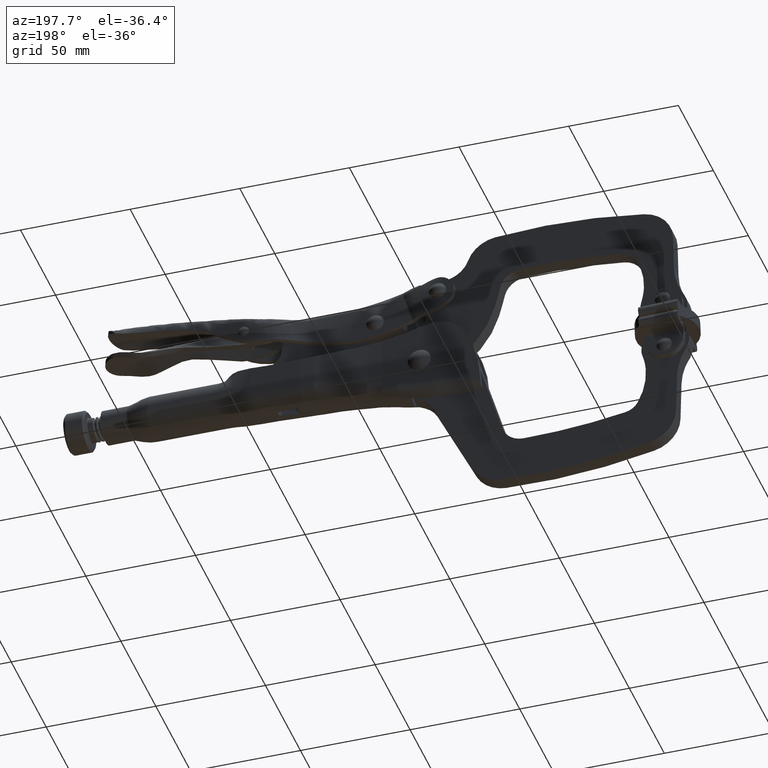
[diagram: clean part render]
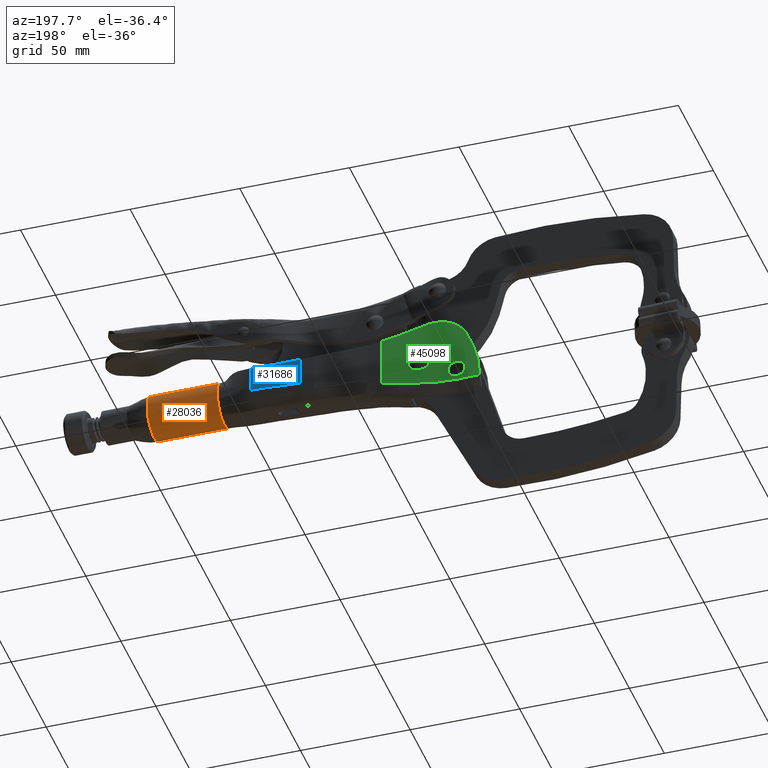
[diagram: same view with three faces highlighted in distinct colors, each labeled with its STEP entity id]
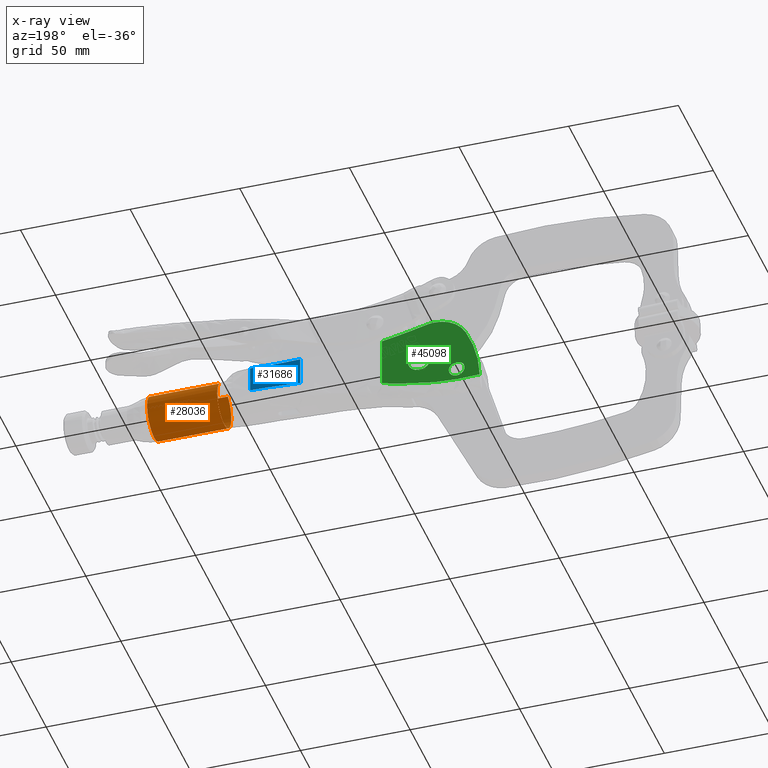
[diagram: x-ray of the same camera — body ghosted, the three highlighted faces saturated]
A machine part, auxiliary view with three faces highlighted in distinct colors.
The next image is the same camera in x-ray (body ghosted, the three faces saturated) — at least one of them is partly hidden behind the body in this view.
Their STEP definitions:

[orange] entity #28036 — the highlighted cylindrical surface (edge-blend (fillet) strip) has radius 10 mm, axis along (-1, -0, -0).
#592 = VERTEX_POINT ( 'NONE', #8088 ) ;
#611 = CARTESIAN_POINT ( 'NONE',  ( 36.02204641913095900, 9.525596559863508600, 8.889288329555022000 ) ) ;
#751 = CARTESIAN_POINT ( 'NONE',  ( 68.02204641913095900, 10.94599640020213400, 7.236930861635720200 ) ) ;
#968 = CARTESIAN_POINT ( 'NONE',  ( 68.02204641913094500, 3.737656320296363500, -8.453879710202306400 ) ) ;
#1102 = CARTESIAN_POINT ( 'NONE',  ( 36.02204641913094500, 12.30682985225393500, -1.057782821088253200 ) ) ;
#1180 = CARTESIAN_POINT ( 'NONE',  ( 68.02204641913095900, -6.214314342678192400, 6.297034963005099700 ) ) ;
#1284 = ORIENTED_EDGE ( 'NONE', *, *, #54007, .T. ) ;
#3744 = B_SPLINE_CURVE_WITH_KNOTS ( 'NONE', 3,
 ( #17872, #6134, #18301, #18338 ),
 .UNSPECIFIED., .F., .F.,
 ( 4, 4 ),
 ( 0.0000000000000000000, 1.000000000000000000 ),
 .UNSPECIFIED. ) ;
#5418 = VERTEX_POINT ( 'NONE', #8054 ) ;
#5569 = CARTESIAN_POINT ( 'NONE',  ( 36.02204641913094500, 7.754735816134156900, 10.14612028979769500 ) ) ;
#5677 = ORIENTED_EDGE ( 'NONE', *, *, #63888, .T. ) ;
#5719 = CARTESIAN_POINT ( 'NONE',  ( 68.02204641913095900, 12.33100504852976100, 4.283271366708026700 ) ) ;
#5854 = CARTESIAN_POINT ( 'NONE',  ( 36.02204641913095900, 4.802618696632373000, -8.219838932011827000 ) ) ;
#5935 = CARTESIAN_POINT ( 'NONE',  ( 68.02204641913095900, 0.4802765938230168500, -8.275468148135166400 ) ) ;
#6134 = CARTESIAN_POINT ( 'NONE',  ( 36.02204641913095200, 1.991841423855072800, -8.530690930397087300 ) ) ;
#6143 = CARTESIAN_POINT ( 'NONE',  ( 68.02204641913097300, -4.227608734443453600, 8.884573212795315200 ) ) ;
#6408 = EDGE_CURVE ( 'NONE', #13045, #59570, #3744, .T. ) ;
#7144 = CARTESIAN_POINT ( 'NONE',  ( 36.02204641913094500, 12.30682985225393500, -1.057782821088253200 ) ) ;
#8054 = CARTESIAN_POINT ( 'NONE',  ( 36.02204641913094500, 7.754735816134156900, 10.14612028979769500 ) ) ;
#8088 = CARTESIAN_POINT ( 'NONE',  ( 68.02204641913095900, -2.451144841604288700, 10.14612028979769100 ) ) ;
#9058 = ORIENTED_EDGE ( 'NONE', *, *, #57327, .T. ) ;
#9282 = B_SPLINE_CURVE_WITH_KNOTS ( 'NONE', 3,
 ( #54959, #25462, #30423, #751, #35380, #5719, #40351, #10776, #45285, #15769, #50239, #20690, #55166, #25670, #60111, #30635, #968, #35592, #5935, #40570, #10989, #45499, #15990, #50443, #20898, #55377, #25893, #60320, #30848, #1180, #35809, #6143, #40788, #11201 ),
 .UNSPECIFIED., .F., .F.,
 ( 4, 2, 2, 2, 2, 2, 2, 2, 2, 2, 2, 2, 2, 2, 2, 2, 4 ),
 ( 0.0000000000000000000, 0.06250000000000001400, 0.1250000000000000300, 0.1875000000000000600, 0.2500000000000000600, 0.3125000000000000600, 0.3750000000000001100, 0.4375000000000001100, 0.5000000000000000000, 0.5625000000000000000, 0.6250000000000000000, 0.6875000000000000000, 0.7500000000000000000, 0.8125000000000001100, 0.8750000000000001100, 0.9375000000000001100, 1.000000000000000000 ),
 .UNSPECIFIED. ) ;
#9591 = VERTEX_POINT ( 'NONE', #47704 ) ;
#9810 = EDGE_CURVE ( 'NONE', #48738, #13045, #54995, .T. ) ;
#10776 = CARTESIAN_POINT ( 'NONE',  ( 68.02204641913094500, 12.69792226456056900, 1.041709224083114100 ) ) ;
#10989 = CARTESIAN_POINT ( 'NONE',  ( 68.02204641913095900, -2.548695557993486000, -7.063989270300751900 ) ) ;
#11201 = CARTESIAN_POINT ( 'NONE',  ( 68.02204641913095900, -2.451144841604288700, 10.14612028979769100 ) ) ;
#13045 = VERTEX_POINT ( 'NONE', #23375 ) ;
#13158 = EDGE_CURVE ( 'NONE', #41102, #48738, #49104, .T. ) ;
#13589 = B_SPLINE_CURVE_WITH_KNOTS ( 'NONE', 3,
 ( #15413, #30066, #20340, #54815, #25318, #59759, #30281, #611, #35234, #5569 ),
 .UNSPECIFIED., .F., .F.,
 ( 4, 2, 2, 2, 4 ),
 ( 0.0000000000000000000, 0.2500000000000000000, 0.5000000000000000000, 0.7500000000000000000, 1.000000000000000000 ),
 .UNSPECIFIED. ) ;
#15413 = CARTESIAN_POINT ( 'NONE',  ( 36.02204641913094500, 12.30682985225393500, -1.057782821088253200 ) ) ;
#15769 = CARTESIAN_POINT ( 'NONE',  ( 68.02204641913095900, 12.00815447599523500, -2.146797286146481500 ) ) ;
#15910 = CARTESIAN_POINT ( 'NONE',  ( 36.02204641913095900, 6.550841412063022100, -7.707171527829632200 ) ) ;
#15990 = CARTESIAN_POINT ( 'NONE',  ( 68.02204641913095900, -5.030662776875975500, -4.946870451643777100 ) ) ;
#17872 = CARTESIAN_POINT ( 'NONE',  ( 36.02204641913094500, 0.6150256375043062800, -8.244261141949797500 ) ) ;
#17962 = VECTOR ( 'NONE', #37184, 1000.000000000000000 ) ;
#18301 = CARTESIAN_POINT ( 'NONE',  ( 36.02204641913095200, 3.429237391809619500, -8.522307979714511800 ) ) ;
#18338 = CARTESIAN_POINT ( 'NONE',  ( 36.02204641913095900, 4.802618696632373000, -8.219838932011827000 ) ) ;
#19487 = ORIENTED_EDGE ( 'NONE', *, *, #9810, .T. ) ;
#19737 = EDGE_CURVE ( 'NONE', #592, #41102, #58772, .T. ) ;
#19777 = CARTESIAN_POINT ( 'NONE',  ( 68.02204641913095900, 2.651795487264938500, 1.546120289797690900 ) ) ;
#20340 = CARTESIAN_POINT ( 'NONE',  ( 36.02204641913095900, 12.69928858485659400, 1.077995840939492700 ) ) ;
#20690 = CARTESIAN_POINT ( 'NONE',  ( 68.02204641913097300, 10.33425375140586200, -4.946870451643763800 ) ) ;
#20691 = CARTESIAN_POINT ( 'NONE',  ( 68.02204641913095900, 7.754735816134157700, 10.14612028979769500 ) ) ;
#20816 = CARTESIAN_POINT ( 'NONE',  ( 36.02204641913095200, 8.898569003801965100, -6.315418313996412200 ) ) ;
#20898 = CARTESIAN_POINT ( 'NONE',  ( 68.02204641913095900, -6.704563501465361100, -2.146797286146484100 ) ) ;
#20919 = CARTESIAN_POINT ( 'NONE',  ( 36.02204641913095900, -7.204462249789418000, -0.1433125797641889600 ) ) ;
#20995 = CARTESIAN_POINT ( 'NONE',  ( 36.02204641913095200, -7.374113285068149000, 0.8464422422186872500 ) ) ;
#21002 = CARTESIAN_POINT ( 'NONE',  ( 36.02204641913095900, -7.393538635063939600, 1.861807559393188600 ) ) ;
#21073 = CARTESIAN_POINT ( 'NONE',  ( 36.02204641913095200, -7.130198680051791800, 3.852846583052061700 ) ) ;
#21134 = CARTESIAN_POINT ( 'NONE',  ( 36.02204641913095900, -6.847469369484385600, 4.828248145737610700 ) ) ;
#21213 = CARTESIAN_POINT ( 'NONE',  ( 36.02204641913095200, -6.005206771027667800, 6.651481000004783300 ) ) ;
#21277 = CARTESIAN_POINT ( 'NONE',  ( 36.02204641913095200, -5.445788607222017000, 7.499063084258375000 ) ) ;
#21294 = CARTESIAN_POINT ( 'NONE',  ( 36.02204641913095900, -4.100467084601434400, 8.990268746268858600 ) ) ;
#21715 = CARTESIAN_POINT ( 'NONE',  ( 36.02204641913095200, -3.314747610133037100, 9.633688499606007500 ) ) ;
#22446 = CARTESIAN_POINT ( 'NONE',  ( 36.02204641913094500, -2.451144841604288700, 10.14612028979769100 ) ) ;
#22589 = CARTESIAN_POINT ( 'NONE',  ( 36.02204641913095900, 4.802618696632373000, -8.219838932011827000 ) ) ;
#22694 = CARTESIAN_POINT ( 'NONE',  ( 36.02204641913095900, -7.204462249789418000, -0.1433125797641889600 ) ) ;
#23375 = CARTESIAN_POINT ( 'NONE',  ( 36.02204641913094500, 0.6150256375043062800, -8.244261141949797500 ) ) ;
#24762 = DIRECTION ( 'NONE',  ( -1.000000000000000000, -0.0000000000000000000, -0.0000000000000000000 ) ) ;
#25318 = CARTESIAN_POINT ( 'NONE',  ( 36.02204641913095200, 12.32368655024228800, 4.307602013740404500 ) ) ;
#25462 = CARTESIAN_POINT ( 'NONE',  ( 68.02204641913095900, 8.688576132541177400, 9.592011986156141000 ) ) ;
#25670 = CARTESIAN_POINT ( 'NONE',  ( 68.02204641913097300, 7.852286532523368800, -7.063989270300747400 ) ) ;
#25808 = CARTESIAN_POINT ( 'NONE',  ( 36.02204641913095200, 10.78479864219318300, -4.342871836855263900 ) ) ;
#25893 = CARTESIAN_POINT ( 'NONE',  ( 68.02204641913095900, -7.394331290030694800, 1.041709224083102500 ) ) ;
#26346 = AXIS2_PLACEMENT_3D ( 'NONE', #19777, #24762, #49330 ) ;
#28036 = ADVANCED_FACE ( 'NONE', ( #45262 ), #43748, .T. ) ;
#28348 = ORIENTED_EDGE ( 'NONE', *, *, #29681, .T. ) ;
#29681 = EDGE_CURVE ( 'NONE', #9591, #592, #9282, .T. ) ;
#30066 = CARTESIAN_POINT ( 'NONE',  ( 36.02204641913095200, 12.58863642231265900, -0.01286985684552476700 ) ) ;
#30281 = CARTESIAN_POINT ( 'NONE',  ( 36.02204641913095200, 10.93746401376941800, 7.248659646493433900 ) ) ;
#30423 = CARTESIAN_POINT ( 'NONE',  ( 68.02204641913095900, 9.531199708973320000, 8.884573212795325900 ) ) ;
#30635 = CARTESIAN_POINT ( 'NONE',  ( 68.02204641913094500, 4.823314380706870400, -8.275468148135162800 ) ) ;
#30765 = CARTESIAN_POINT ( 'NONE',  ( 36.02204641913095200, 12.07017981046879700, -1.935259512275199000 ) ) ;
#30848 = CARTESIAN_POINT ( 'NONE',  ( 68.02204641913095900, -7.027414073999880300, 4.283271366708020400 ) ) ;
#35234 = CARTESIAN_POINT ( 'NONE',  ( 36.02204641913095200, 8.685468028240345400, 9.593856226944868800 ) ) ;
#35380 = CARTESIAN_POINT ( 'NONE',  ( 68.02204641913095900, 11.51790531720806300, 6.297034963005105900 ) ) ;
#35505 = CARTESIAN_POINT ( 'NONE',  ( 36.02204641913095200, 5.690176550936197200, -8.024366066588653400 ) ) ;
#35592 = CARTESIAN_POINT ( 'NONE',  ( 68.02204641913095900, 1.565934654233525300, -8.453879710202310000 ) ) ;
#35742 = VERTEX_POINT ( 'NONE', #7144 ) ;
#35809 = CARTESIAN_POINT ( 'NONE',  ( 68.02204641913095900, -5.642405425672263800, 7.236930861635710400 ) ) ;
#36654 = CARTESIAN_POINT ( 'NONE',  ( 36.02204641913094500, 0.6150256375043062800, -8.244261141949797500 ) ) ;
#36869 = CARTESIAN_POINT ( 'NONE',  ( 36.02204641913095200, -0.3606892465287562200, -8.041275520642242800 ) ) ;
#36938 = CARTESIAN_POINT ( 'NONE',  ( 36.02204641913095900, -1.305706223804418600, -7.691379529107012800 ) ) ;
#37001 = CARTESIAN_POINT ( 'NONE',  ( 36.02204641913095200, -3.050986876867980400, -6.728630220321378800 ) ) ;
#37147 = CARTESIAN_POINT ( 'NONE',  ( 36.02204641913095200, -3.851019110122564400, -6.115904573734483500 ) ) ;
#37184 = DIRECTION ( 'NONE',  ( -1.000000000000000000, -0.0000000000000000000, -0.0000000000000000000 ) ) ;
#37218 = CARTESIAN_POINT ( 'NONE',  ( 36.02204641913094500, -5.235298629023207100, -4.681798230718947600 ) ) ;
#37281 = CARTESIAN_POINT ( 'NONE',  ( 36.02204641913095200, -5.819362344675461400, -3.860607711843977900 ) ) ;
#37355 = CARTESIAN_POINT ( 'NONE',  ( 36.02204641913095200, -6.719818948166832200, -2.082387057719756700 ) ) ;
#40351 = CARTESIAN_POINT ( 'NONE',  ( 68.02204641913095900, 12.57204402537374200, 3.209779717343416800 ) ) ;
#40570 = CARTESIAN_POINT ( 'NONE',  ( 68.02204641913094500, -1.577230620762287500, -7.580458035420131000 ) ) ;
#40788 = CARTESIAN_POINT ( 'NONE',  ( 68.02204641913094500, -3.384985158011307900, 9.592011986156133900 ) ) ;
#41102 = VERTEX_POINT ( 'NONE', #60359 ) ;
#42477 = LINE ( 'NONE', #20691, #57085 ) ;
#43242 = CARTESIAN_POINT ( 'NONE',  ( 36.02204641913095900, -7.204462249789418000, -0.1433125797641889600 ) ) ;
#43748 = CYLINDRICAL_SURFACE ( 'NONE', #26346, 9.999999999999998200 ) ;
#45262 = FACE_OUTER_BOUND ( 'NONE', #45803, .T. ) ;
#45285 = CARTESIAN_POINT ( 'NONE',  ( 68.02204641913095900, 12.58273802052055100, -0.05246475638730419000 ) ) ;
#45499 = CARTESIAN_POINT ( 'NONE',  ( 68.02204641913094500, -4.275572873765447900, -5.747072518520681700 ) ) ;
#45803 = EDGE_LOOP ( 'NONE', ( #28348, #62198, #50132, #19487, #49659, #5677, #9058, #1284 ) ) ;
#46693 = CARTESIAN_POINT ( 'NONE',  ( 36.02204641913095200, -7.036092426009010300, -1.125592733193708300 ) ) ;
#46885 = CARTESIAN_POINT ( 'NONE',  ( 68.02204641913095900, -2.451144841604290500, 10.14612028979769000 ) ) ;
#47704 = CARTESIAN_POINT ( 'NONE',  ( 68.02204641913095900, 7.754735816134156900, 10.14612028979769500 ) ) ;
#48738 = VERTEX_POINT ( 'NONE', #22694 ) ;
#49104 = B_SPLINE_CURVE_WITH_KNOTS ( 'NONE', 3,
 ( #22446, #21715, #21294, #21277, #21213, #21134, #21073, #21002, #20995, #20919 ),
 .UNSPECIFIED., .F., .F.,
 ( 4, 2, 2, 2, 4 ),
 ( 0.0000000000000000000, 0.2500000000000000000, 0.5000000000000000000, 0.7500000000000000000, 1.000000000000000000 ),
 .UNSPECIFIED. ) ;
#49330 = DIRECTION ( 'NONE',  ( 0.0000000000000000000, 0.0000000000000000000, 1.000000000000000000 ) ) ;
#49659 = ORIENTED_EDGE ( 'NONE', *, *, #6408, .T. ) ;
#50132 = ORIENTED_EDGE ( 'NONE', *, *, #13158, .T. ) ;
#50239 = CARTESIAN_POINT ( 'NONE',  ( 68.02204641913095900, 11.54886247269547400, -3.146564741767254000 ) ) ;
#50240 = DIRECTION ( 'NONE',  ( 1.000000000000000000, 0.0000000000000000000, 0.0000000000000000000 ) ) ;
#50363 = CARTESIAN_POINT ( 'NONE',  ( 36.02204641913095200, 8.155111254216603100, -6.852658440176949000 ) ) ;
#50443 = CARTESIAN_POINT ( 'NONE',  ( 68.02204641913094500, -6.245271498165587700, -3.146564741767267700 ) ) ;
#54007 = EDGE_CURVE ( 'NONE', #5418, #9591, #42477, .T. ) ;
#54461 = B_SPLINE_CURVE_WITH_KNOTS ( 'NONE', 3,
 ( #5854, #35505, #15910, #50363, #20816, #55292, #25808, #60241, #30765, #1102 ),
 .UNSPECIFIED., .F., .F.,
 ( 4, 2, 2, 2, 4 ),
 ( 0.0000000000000000000, 0.2500000000000000000, 0.5000000000000000000, 0.7500000000000000000, 1.000000000000000000 ),
 .UNSPECIFIED. ) ;
#54815 = CARTESIAN_POINT ( 'NONE',  ( 36.02204641913095200, 12.56680144201718400, 3.238430829562247000 ) ) ;
#54959 = CARTESIAN_POINT ( 'NONE',  ( 68.02204641913095900, 7.754735816134156900, 10.14612028979769500 ) ) ;
#54995 = B_SPLINE_CURVE_WITH_KNOTS ( 'NONE', 3,
 ( #43242, #46693, #37355, #37281, #37218, #37147, #37001, #36938, #36869, #36654 ),
 .UNSPECIFIED., .F., .F.,
 ( 4, 2, 2, 2, 4 ),
 ( 0.0000000000000000000, 0.2500000000000000600, 0.5000000000000001100, 0.7500000000000000000, 1.000000000000000000 ),
 .UNSPECIFIED. ) ;
#55166 = CARTESIAN_POINT ( 'NONE',  ( 68.02204641913094500, 9.579163848295332100, -5.747072518520674600 ) ) ;
#55292 = CARTESIAN_POINT ( 'NONE',  ( 36.02204641913095900, 10.21347303527550000, -5.060467425942281500 ) ) ;
#55377 = CARTESIAN_POINT ( 'NONE',  ( 68.02204641913095900, -7.279147045990674400, -0.05246475638730400300 ) ) ;
#57085 = VECTOR ( 'NONE', #50240, 1000.000000000000000 ) ;
#57327 = EDGE_CURVE ( 'NONE', #35742, #5418, #13589, .T. ) ;
#58772 = LINE ( 'NONE', #46885, #17962 ) ;
#59570 = VERTEX_POINT ( 'NONE', #22589 ) ;
#59759 = CARTESIAN_POINT ( 'NONE',  ( 36.02204641913095900, 11.50894276907708000, 6.312901181978340900 ) ) ;
#60111 = CARTESIAN_POINT ( 'NONE',  ( 68.02204641913095900, 6.880821595292174700, -7.580458035420126500 ) ) ;
#60241 = CARTESIAN_POINT ( 'NONE',  ( 36.02204641913095900, 11.71319463143829200, -2.780196172948386400 ) ) ;
#60320 = CARTESIAN_POINT ( 'NONE',  ( 68.02204641913095900, -7.268453050843867800, 3.209779717343406600 ) ) ;
#60359 = CARTESIAN_POINT ( 'NONE',  ( 36.02204641913094500, -2.451144841604288700, 10.14612028979769100 ) ) ;
#62198 = ORIENTED_EDGE ( 'NONE', *, *, #19737, .T. ) ;
#63888 = EDGE_CURVE ( 'NONE', #59570, #35742, #54461, .T. ) ;

[blue] entity #31686 — the highlighted planar face has unit normal (0, 1, 0).
#1273 = ORIENTED_EDGE ( 'NONE', *, *, #58903, .T. ) ;
#1416 = EDGE_CURVE ( 'NONE', #6296, #50430, #12147, .T. ) ;
#2104 = DIRECTION ( 'NONE',  ( 0.0000000000000000000, 1.000000000000000000, -0.0000000000000000000 ) ) ;
#2502 = CARTESIAN_POINT ( 'NONE',  ( 12.16098166333939400, 12.65179548726494100, -0.6986608687994649800 ) ) ;
#2720 = CARTESIAN_POINT ( 'NONE',  ( 9.558692299340281200, 12.65179548726493800, -0.7881498150597348000 ) ) ;
#2728 = VECTOR ( 'NONE', #45865, 1000.000000000000000 ) ;
#2935 = CARTESIAN_POINT ( 'NONE',  ( 5.710943555642130900, 12.65179548726493900, -1.031207597890486200 ) ) ;
#3145 = CARTESIAN_POINT ( 'NONE',  ( 3.827712906759640300, 12.65179548726493800, -1.181869059529792300 ) ) ;
#3330 = CARTESIAN_POINT ( 'NONE',  ( 16.70536564177730200, 12.65179548726493800, -0.5908578943507718500 ) ) ;
#3355 = CARTESIAN_POINT ( 'NONE',  ( 0.4806908400562572800, 12.65179548726494100, -1.445599380553157300 ) ) ;
#4703 = EDGE_CURVE ( 'NONE', #14359, #6296, #15950, .T. ) ;
#5061 = CARTESIAN_POINT ( 'NONE',  ( -1.827773344956769200, 12.65179548726493200, 11.20412815432691300 ) ) ;
#6296 = VERTEX_POINT ( 'NONE', #5061 ) ;
#7262 = CARTESIAN_POINT ( 'NONE',  ( 13.05046508063226300, 12.65179548726493900, -0.6894647118337302600 ) ) ;
#7478 = CARTESIAN_POINT ( 'NONE',  ( 11.65296447755173000, 12.65179548726493900, -0.7098824026195819100 ) ) ;
#7563 = CARTESIAN_POINT ( 'NONE',  ( -1.827773344956838700, 12.65179548726493200, -1.604901785083591600 ) ) ;
#7704 = CARTESIAN_POINT ( 'NONE',  ( 9.494594664909056900, 12.65179548726494100, -0.7912583931415214700 ) ) ;
#7914 = CARTESIAN_POINT ( 'NONE',  ( 5.705891522807924300, 12.65179548726494300, -1.031595544662646800 ) ) ;
#8124 = CARTESIAN_POINT ( 'NONE',  ( 20.27533879904969900, 12.65179548726493800, -0.4584790982659752200 ) ) ;
#8151 = CARTESIAN_POINT ( 'NONE',  ( 3.549091295920590500, 12.65179548726494100, -1.204190942451176700 ) ) ;
#8346 = CARTESIAN_POINT ( 'NONE',  ( 15.61945805121534600, 12.65179548726493800, -0.6364919234364516700 ) ) ;
#8370 = CARTESIAN_POINT ( 'NONE',  ( 0.1689244398131592200, 12.65179548726494300, -1.468814780723828500 ) ) ;
#12147 = CIRCLE ( 'NONE', #18773, 265.0000000000001100 ) ;
#12508 = CARTESIAN_POINT ( 'NONE',  ( 11.43655065555795300, 12.65179548726493800, -0.7157130397910533800 ) ) ;
#12725 = CARTESIAN_POINT ( 'NONE',  ( 7.954507433703801300, 12.65179548726493800, -0.8735112674955665100 ) ) ;
#12923 = CARTESIAN_POINT ( 'NONE',  ( 20.73411071659364100, 12.65179548726493900, -0.4538870702949517900 ) ) ;
#12947 = CARTESIAN_POINT ( 'NONE',  ( 5.435686344466704500, 12.65179548726493900, -1.053103152965779300 ) ) ;
#13139 = CARTESIAN_POINT ( 'NONE',  ( 19.39020357940005800, 12.65179548726493800, -0.4805444224509650700 ) ) ;
#13166 = CARTESIAN_POINT ( 'NONE',  ( 2.541662961164938400, 12.65179548726493600, -1.284416164992107300 ) ) ;
#13358 = CARTESIAN_POINT ( 'NONE',  ( 15.29179396307082300, 12.65179548726494100, -0.6486368161322604300 ) ) ;
#13381 = CARTESIAN_POINT ( 'NONE',  ( -0.3688085455565275900, 12.65179548726494100, -1.507974998139297800 ) ) ;
#14359 = VERTEX_POINT ( 'NONE', #7563 ) ;
#15950 = LINE ( 'NONE', #34527, #2728 ) ;
#16055 = DIRECTION ( 'NONE',  ( -0.0000000000000000000, -1.000000000000000000, -0.0000000000000000000 ) ) ;
#16244 = ORIENTED_EDGE ( 'NONE', *, *, #1416, .T. ) ;
#17007 = B_SPLINE_CURVE_WITH_KNOTS ( 'NONE', 3,
 ( #62214, #12923, #8124, #42689, #13139, #47662, #18126, #52568, #23056, #57521, #28022, #62424, #32981, #3330, #37951, #8346, #42910, #13358, #47866, #18344, #52782, #23271, #57735, #28240, #62637, #33187 ),
 .UNSPECIFIED., .F., .F.,
 ( 4, 1, 1, 1, 1, 1, 1, 2, 2, 2, 1, 1, 1, 1, 1, 1, 2, 2, 4 ),
 ( 0.0000000000000000000, 0.1249999999999728600, 0.1874999999999599500, 0.2187499999999534800, 0.2343749999999502600, 0.2421874999999480400, 0.2460937499999475400, 0.2480468749999472600, 0.2499999999999470400, 0.4999999999999367200, 0.6249999999999315000, 0.6874999999999296100, 0.7187499999999295000, 0.7343749999999299400, 0.7421874999999300600, 0.7460937499999301700, 0.7480468749999307200, 0.7499999999999312800, 1.000000000000000000 ),
 .UNSPECIFIED. ) ;
#17310 = CARTESIAN_POINT ( 'NONE',  ( 12.78141295122861900, 12.65179548726494300, -0.6909866303573890500 ) ) ;
#17338 = CARTESIAN_POINT ( 'NONE',  ( 7.322046419130972000, 12.65179548726493900, 276.0461202897976700 ) ) ;
#17519 = CARTESIAN_POINT ( 'NONE',  ( 11.38423291674852500, 12.65179548726493900, -0.7171925449217017000 ) ) ;
#17690 = DIRECTION ( 'NONE',  ( 1.598564048428438200E-014, 0.0000000000000000000, 1.000000000000000000 ) ) ;
#17731 = CARTESIAN_POINT ( 'NONE',  ( 6.277270371393928600, 12.65179548726493800, -0.9886241508016465600 ) ) ;
#17939 = CARTESIAN_POINT ( 'NONE',  ( 4.322595422337956400, 12.65179548726494100, -1.142224942201840000 ) ) ;
#18126 = CARTESIAN_POINT ( 'NONE',  ( 19.15789954717324400, 12.65179548726494100, -0.4879396742877077400 ) ) ;
#18154 = CARTESIAN_POINT ( 'NONE',  ( 2.093733948020918900, 12.65179548726494500, -1.319936263372828400 ) ) ;
#18344 = CARTESIAN_POINT ( 'NONE',  ( 15.21816809654406400, 12.65179548726493800, -0.6512031674830475200 ) ) ;
#18368 = CARTESIAN_POINT ( 'NONE',  ( -1.827773344956838700, 12.65179548726493200, -1.604901785083591600 ) ) ;
#18507 = VERTEX_POINT ( 'NONE', #54658 ) ;
#18773 = AXIS2_PLACEMENT_3D ( 'NONE', #17338, #16055, #17690 ) ;
#22232 = CARTESIAN_POINT ( 'NONE',  ( 12.41149067797609200, 12.65179548726494300, -0.6948389204514229300 ) ) ;
#22442 = CARTESIAN_POINT ( 'NONE',  ( 11.06617250329336800, 12.65179548726493800, -0.7263315872228280900 ) ) ;
#22652 = CARTESIAN_POINT ( 'NONE',  ( 5.849258216028625100, 12.65179548726494100, -1.020641242473195000 ) ) ;
#22868 = CARTESIAN_POINT ( 'NONE',  ( 3.953902236019488200, 12.65179548726494100, -1.171759574821474900 ) ) ;
#23028 = VECTOR ( 'NONE', #60314, 1000.000000000000000 ) ;
#23056 = CARTESIAN_POINT ( 'NONE',  ( 19.10193747050419300, 12.65179548726493900, -0.4898115434543068900 ) ) ;
#23082 = CARTESIAN_POINT ( 'NONE',  ( 1.984178191035179000, 12.65179548726494300, -1.328614224652156800 ) ) ;
#23271 = CARTESIAN_POINT ( 'NONE',  ( 15.20112501047241700, 12.65179548726494500, -0.6517866078721917800 ) ) ;
#23576 = FACE_OUTER_BOUND ( 'NONE', #43467, .T. ) ;
#24567 = LINE ( 'NONE', #40990, #23028 ) ;
#27209 = CARTESIAN_POINT ( 'NONE',  ( 12.33620044627261000, 12.65179548726493900, -0.6959067709576272100 ) ) ;
#27418 = CARTESIAN_POINT ( 'NONE',  ( 10.04932008468112800, 12.65179548726493800, -0.7654153860386304600 ) ) ;
#27634 = CARTESIAN_POINT ( 'NONE',  ( 5.741711246575443200, 12.65179548726493800, -1.028847944818896100 ) ) ;
#27835 = CARTESIAN_POINT ( 'NONE',  ( 3.856077660953205900, 12.65179548726493900, -1.179596619558297600 ) ) ;
#28022 = CARTESIAN_POINT ( 'NONE',  ( 19.08285589403434200, 12.65179548726493600, -0.4904571969276991200 ) ) ;
#28046 = CARTESIAN_POINT ( 'NONE',  ( 1.952849145970918500, 12.65179548726493900, -1.331095213985115100 ) ) ;
#28240 = CARTESIAN_POINT ( 'NONE',  ( 14.47546423483362500, 12.65179548726493800, -0.6764634999233228900 ) ) ;
#31686 = ADVANCED_FACE ( 'NONE', ( #23576 ), #31766, .T. ) ;
#31766 = PLANE ( 'NONE',  #34625 ) ;
#32045 = CARTESIAN_POINT ( 'NONE',  ( 21.02204641913094800, 12.65179548726493900, -0.4538797102023126600 ) ) ;
#32154 = CARTESIAN_POINT ( 'NONE',  ( 12.31655742680998800, 12.65179548726494100, -0.6962050187489230400 ) ) ;
#32363 = CARTESIAN_POINT ( 'NONE',  ( 9.620649490930899700, 12.65179548726493900, -0.7851694788999278300 ) ) ;
#32581 = CARTESIAN_POINT ( 'NONE',  ( 5.714790508548969900, 12.65179548726493900, -1.030912272244559800 ) ) ;
#32788 = CARTESIAN_POINT ( 'NONE',  ( 3.832451952407843100, 12.65179548726493800, -1.181489389972106000 ) ) ;
#32981 = CARTESIAN_POINT ( 'NONE',  ( 18.00004122307056800, 12.65179548726494300, -0.5321671487439968400 ) ) ;
#33002 = CARTESIAN_POINT ( 'NONE',  ( 0.9882007412709665800, 12.65179548726493900, -1.406950591530995400 ) ) ;
#33187 = CARTESIAN_POINT ( 'NONE',  ( 13.25180191861919500, 12.65179548726493900, -0.6887089147613839600 ) ) ;
#34527 = CARTESIAN_POINT ( 'NONE',  ( -1.827773344956783200, 12.65179548726493900, -0.3350601694335343400 ) ) ;
#34625 = AXIS2_PLACEMENT_3D ( 'NONE', #46436, #2104, #36750 ) ;
#36750 = DIRECTION ( 'NONE',  ( 0.0000000000000000000, 0.0000000000000000000, 1.000000000000000000 ) ) ;
#37134 = CARTESIAN_POINT ( 'NONE',  ( 11.93313974758235400, 12.65179548726494100, -0.7030750631984343800 ) ) ;
#37338 = CARTESIAN_POINT ( 'NONE',  ( 9.517319073009320000, 12.65179548726493600, -0.7901517842037879500 ) ) ;
#37557 = CARTESIAN_POINT ( 'NONE',  ( 5.708378812448160000, 12.65179548726494500, -1.031404521819006200 ) ) ;
#37761 = CARTESIAN_POINT ( 'NONE',  ( 3.824036960889091400, 12.65179548726494100, -1.182163559170839300 ) ) ;
#37951 = CARTESIAN_POINT ( 'NONE',  ( 16.13887660581299200, 12.65179548726493800, -0.6156208981358632900 ) ) ;
#37978 = CARTESIAN_POINT ( 'NONE',  ( 0.2900493054125290500, 12.65179548726494500, -1.459838564963958000 ) ) ;
#40990 = CARTESIAN_POINT ( 'NONE',  ( 21.02204641913094800, 12.65179548726493900, -0.3350601694335343400 ) ) ;
#41203 = B_SPLINE_CURVE_WITH_KNOTS ( 'NONE', 3,
 ( #41882, #7262, #17310, #51750, #22232, #56700, #27209, #61604, #32154, #2502, #37134, #7478, #42095, #12508, #47044, #17519, #51956, #22442, #56916, #27418, #61817, #32363, #2720, #37338, #7704, #42309, #12725, #47249, #17731, #52165, #22652, #57127, #27634, #62026, #32581, #2935, #37557, #7914, #42514, #12947, #47466, #17939, #52379, #22868, #57335, #27835, #62241, #32788, #3145, #37761, #8151, #42713, #13166, #47686, #18154, #52597, #23082, #57545, #28046, #62448, #33002, #3355, #37978, #8370, #42940, #13381, #47889, #18368 ),
 .UNSPECIFIED., .F., .F.,
 ( 4, 1, 1, 1, 1, 2, 2, 1, 1, 1, 1, 2, 2, 1, 1, 1, 1, 2, 2, 1, 1, 1, 1, 1, 1, 1, 1, 1, 2, 2, 1, 1, 1, 1, 1, 1, 1, 1, 2, 2, 1, 1, 1, 1, 1, 2, 2, 1, 1, 2, 2, 4 ),
 ( 0.0000000000000000000, 0.03124999999996738000, 0.04687499999995124000, 0.05468749999994317700, 0.05859374999993914600, 0.06054687499993735600, 0.06249999999993556500, 0.09374999999990323000, 0.1093749999998872400, 0.1171874999998794300, 0.1210937499998755200, 0.1230468749998735600, 0.1249999999998716000, 0.1874999999998031600, 0.2187499999997690700, 0.2343749999997520600, 0.2421874999997435400, 0.2460937499997392900, 0.2499999999997350500, 0.3749999999996009900, 0.4374999999995337600, 0.4687499999995001800, 0.4843749999994834700, 0.4921874999994750900, 0.4960937499994709800, 0.4980468749994688700, 0.4990234374994677600, 0.4995117187494672600, 0.4997558593744670900, 0.4999999999994668700, 0.5624999999995292700, 0.5937499999995605700, 0.6093749999995761200, 0.6171874999995838900, 0.6210937499995877700, 0.6230468749995896600, 0.6240234374995905500, 0.6245117187495909900, 0.6247558593745912200, 0.6249999999995914400, 0.6874999999996590500, 0.7187499999996929100, 0.7343749999997099000, 0.7421874999997184500, 0.7460937499997226700, 0.7480468749997247800, 0.7499999999997267700, 0.8124999999997951600, 0.8437499999998292500, 0.8593749999998463500, 0.8749999999998634400, 1.000000000000000000 ),
 .UNSPECIFIED. ) ;
#41882 = CARTESIAN_POINT ( 'NONE',  ( 13.25180191861919500, 12.65179548726493900, -0.6887089147613839600 ) ) ;
#42095 = CARTESIAN_POINT ( 'NONE',  ( 11.50928691712454800, 12.65179548726493900, -0.7137004338190760000 ) ) ;
#42309 = CARTESIAN_POINT ( 'NONE',  ( 8.875796282404886400, 12.65179548726493900, -0.8215516593070678600 ) ) ;
#42514 = CARTESIAN_POINT ( 'NONE',  ( 5.685944355280378600, 12.65179548726493900, -1.033127606918106300 ) ) ;
#42689 = CARTESIAN_POINT ( 'NONE',  ( 19.69308525870686600, 12.65179548726493800, -0.4718531929382828200 ) ) ;
#42713 = CARTESIAN_POINT ( 'NONE',  ( 3.108320468311311000, 12.65179548726494300, -1.239379567758642800 ) ) ;
#42910 = CARTESIAN_POINT ( 'NONE',  ( 15.39512010409010800, 12.65179548726494100, -0.6449226496412416900 ) ) ;
#42940 = CARTESIAN_POINT ( 'NONE',  ( 0.1099491049603467900, 12.65179548726494300, -1.473146277909380200 ) ) ;
#43467 = EDGE_LOOP ( 'NONE', ( #63140, #16244, #46198, #1273, #60588 ) ) ;
#45865 = DIRECTION ( 'NONE',  ( 0.0000000000000000000, 0.0000000000000000000, 1.000000000000000000 ) ) ;
#46198 = ORIENTED_EDGE ( 'NONE', *, *, #58542, .F. ) ;
#46436 = CARTESIAN_POINT ( 'NONE',  ( -128.4196285889801700, 12.65179548726493900, -0.3350601694335343400 ) ) ;
#47044 = CARTESIAN_POINT ( 'NONE',  ( 11.40518565459668000, 12.65179548726494100, -0.7165977831445216100 ) ) ;
#47249 = CARTESIAN_POINT ( 'NONE',  ( 6.842538113790859600, 12.65179548726493600, -0.9479499926542667200 ) ) ;
#47466 = CARTESIAN_POINT ( 'NONE',  ( 4.757924720495665800, 12.65179548726493900, -1.107359147346711700 ) ) ;
#47662 = CARTESIAN_POINT ( 'NONE',  ( 19.23582401246280300, 12.65179548726494100, -0.4853910827514380500 ) ) ;
#47686 = CARTESIAN_POINT ( 'NONE',  ( 2.245227988857892300, 12.65179548726493900, -1.307930263869195600 ) ) ;
#47866 = CARTESIAN_POINT ( 'NONE',  ( 15.24234160069704000, 12.65179548726493900, -0.6503686002249258200 ) ) ;
#47889 = CARTESIAN_POINT ( 'NONE',  ( -0.9969842640282851100, 12.65179548726494100, -1.550603547929597200 ) ) ;
#50430 = VERTEX_POINT ( 'NONE', #56801 ) ;
#51750 = CARTESIAN_POINT ( 'NONE',  ( 12.52518677351708100, 12.65179548726493900, -0.6934415920698275800 ) ) ;
#51956 = CARTESIAN_POINT ( 'NONE',  ( 11.37249868464556000, 12.65179548726494100, -0.7175279284733199200 ) ) ;
#52165 = CARTESIAN_POINT ( 'NONE',  ( 5.992315729585380200, 12.65179548726493900, -1.009824928767344600 ) ) ;
#52379 = CARTESIAN_POINT ( 'NONE',  ( 4.080818651716160000, 12.65179548726493900, -1.161592289045568300 ) ) ;
#52568 = CARTESIAN_POINT ( 'NONE',  ( 19.11875364407322000, 12.65179548726493900, -0.4892452854023507400 ) ) ;
#52597 = CARTESIAN_POINT ( 'NONE',  ( 2.017167788931448800, 12.65179548726493900, -1.326001500640916900 ) ) ;
#52782 = CARTESIAN_POINT ( 'NONE',  ( 15.20792645412868900, 12.65179548726494500, -0.6515541267104829600 ) ) ;
#54658 = CARTESIAN_POINT ( 'NONE',  ( 13.25180191861919500, 12.65179548726493900, -0.6887089147613839600 ) ) ;
#55612 = EDGE_CURVE ( 'NONE', #18507, #14359, #41203, .T. ) ;
#56700 = CARTESIAN_POINT ( 'NONE',  ( 12.35824687853433400, 12.65179548726493400, -0.6955800465235640900 ) ) ;
#56801 = CARTESIAN_POINT ( 'NONE',  ( 21.02204641913094800, 12.65179548726493900, 11.40048930375616500 ) ) ;
#56916 = CARTESIAN_POINT ( 'NONE',  ( 10.60746821665668600, 12.65179548726493800, -0.7420319562431776400 ) ) ;
#57127 = CARTESIAN_POINT ( 'NONE',  ( 5.777584411087006300, 12.65179548726493600, -1.026103380506870400 ) ) ;
#57335 = CARTESIAN_POINT ( 'NONE',  ( 3.888937020574666700, 12.65179548726493900, -1.176964120797938200 ) ) ;
#57521 = CARTESIAN_POINT ( 'NONE',  ( 19.09071794191270000, 12.65179548726494100, -0.4901905400292538900 ) ) ;
#57545 = CARTESIAN_POINT ( 'NONE',  ( 1.962146119167575300, 12.65179548726494300, -1.330359004350900800 ) ) ;
#57735 = CARTESIAN_POINT ( 'NONE',  ( 15.19997944069177500, 12.65179548726494300, -0.6518258621086043800 ) ) ;
#58542 = EDGE_CURVE ( 'NONE', #63511, #50430, #24567, .T. ) ;
#58903 = EDGE_CURVE ( 'NONE', #63511, #18507, #17007, .T. ) ;
#60314 = DIRECTION ( 'NONE',  ( 0.0000000000000000000, 0.0000000000000000000, 1.000000000000000000 ) ) ;
#60588 = ORIENTED_EDGE ( 'NONE', *, *, #55612, .T. ) ;
#61604 = CARTESIAN_POINT ( 'NONE',  ( 12.32167445563757000, 12.65179548726493600, -0.6961266092413522800 ) ) ;
#61817 = CARTESIAN_POINT ( 'NONE',  ( 9.764497735968483000, 12.65179548726493800, -0.7783736840876184200 ) ) ;
#62026 = CARTESIAN_POINT ( 'NONE',  ( 5.723765598809512400, 12.65179548726493900, -1.030223600798705800 ) ) ;
#62214 = CARTESIAN_POINT ( 'NONE',  ( 21.02204641913094800, 12.65179548726493900, -0.4538797102023126600 ) ) ;
#62241 = CARTESIAN_POINT ( 'NONE',  ( 3.839553793167636900, 12.65179548726493800, -1.180920425381509100 ) ) ;
#62424 = CARTESIAN_POINT ( 'NONE',  ( 18.64804848999014900, 12.65179548726494100, -0.5052375637464297000 ) ) ;
#62448 = CARTESIAN_POINT ( 'NONE',  ( 1.530660062962385200, 12.65179548726494100, -1.364524728831493200 ) ) ;
#62637 = CARTESIAN_POINT ( 'NONE',  ( 13.82794385979097000, 12.65179548726494100, -0.6886941876607761700 ) ) ;
#63140 = ORIENTED_EDGE ( 'NONE', *, *, #4703, .T. ) ;
#63511 = VERTEX_POINT ( 'NONE', #32045 ) ;

[green] entity #45098 — the highlighted planar face has unit normal (-0, 1, 0).
#464 = CARTESIAN_POINT ( 'NONE',  ( -41.91526208689283100, 9.501795487264939100, -8.615406964910702600 ) ) ;
#635 = EDGE_CURVE ( 'NONE', #8056, #17607, #56111, .T. ) ;
#958 = ORIENTED_EDGE ( 'NONE', *, *, #23916, .T. ) ;
#1159 = CIRCLE ( 'NONE', #49458, 265.0000000000001100 ) ;
#1982 = DIRECTION ( 'NONE',  ( 0.0000000000000000000, 0.0000000000000000000, 1.000000000000000000 ) ) ;
#2800 = CARTESIAN_POINT ( 'NONE',  ( -49.91957771787723200, 9.501795487264937300, 1.497795306755891100 ) ) ;
#3415 = VERTEX_POINT ( 'NONE', #26067 ) ;
#3809 = FACE_BOUND ( 'NONE', #44218, .T. ) ;
#3819 = DIRECTION ( 'NONE',  ( 0.0000000000000000000, 0.0000000000000000000, -1.000000000000000000 ) ) ;
#3868 = VERTEX_POINT ( 'NONE', #42642 ) ;
#4254 = DIRECTION ( 'NONE',  ( -1.000000000000000000, 0.0000000000000000000, 0.0000000000000000000 ) ) ;
#5318 = FACE_OUTER_BOUND ( 'NONE', #44792, .T. ) ;
#5421 = CARTESIAN_POINT ( 'NONE',  ( -41.97705960901992500, 9.501795487264937300, -8.632033599579655100 ) ) ;
#6977 = DIRECTION ( 'NONE',  ( 0.0000000000000000000, 0.0000000000000000000, 1.000000000000000000 ) ) ;
#7059 = CIRCLE ( 'NONE', #22466, 3.590192378848139600 ) ;
#7159 = CARTESIAN_POINT ( 'NONE',  ( -62.18125906894898900, 9.501795487264939100, 19.77733668390817100 ) ) ;
#7196 = ORIENTED_EDGE ( 'NONE', *, *, #635, .T. ) ;
#7202 = DIRECTION ( 'NONE',  ( 0.0000000000000000000, 1.000000000000000000, 0.0000000000000000000 ) ) ;
#7295 = EDGE_CURVE ( 'NONE', #17640, #26222, #62071, .T. ) ;
#7648 = CIRCLE ( 'NONE', #32487, 5.250000000000018700 ) ;
#8056 = VERTEX_POINT ( 'NONE', #8250 ) ;
#8080 = CARTESIAN_POINT ( 'NONE',  ( -55.15011207672202400, 9.501795487264937300, 1.046120289797688200 ) ) ;
#8250 = CARTESIAN_POINT ( 'NONE',  ( -76.28791401129832600, 9.501795487264939100, 11.32732253405988500 ) ) ;
#8797 = ORIENTED_EDGE ( 'NONE', *, *, #42379, .T. ) ;
#8846 = AXIS2_PLACEMENT_3D ( 'NONE', #48672, #9390, #43927 ) ;
#9220 = DIRECTION ( 'NONE',  ( -1.000000000000000000, 0.0000000000000000000, 0.0000000000000000000 ) ) ;
#9390 = DIRECTION ( 'NONE',  ( -1.858644195959493800E-017, 1.000000000000000000, 0.0000000000000000000 ) ) ;
#9428 = DIRECTION ( 'NONE',  ( 1.858644195959493800E-017, -1.000000000000000000, -0.0000000000000000000 ) ) ;
#10407 = CARTESIAN_POINT ( 'NONE',  ( -72.15011207672203900, 9.501795487264937300, -7.453879710202310900 ) ) ;
#10485 = CARTESIAN_POINT ( 'NONE',  ( -41.99379117580191700, 9.501795487264935500, -8.636539019963564100 ) ) ;
#11491 = CARTESIAN_POINT ( 'NONE',  ( -62.18125906894898900, 9.501795487264939100, 3.777336683908171500 ) ) ;
#11953 = CARTESIAN_POINT ( 'NONE',  ( -38.11050403654422800, 9.501795487264935500, 14.96972656739969300 ) ) ;
#12186 = CARTESIAN_POINT ( 'NONE',  ( -48.87534027514304600, 9.501795487264937300, -10.40808763044799300 ) ) ;
#13096 = DIRECTION ( 'NONE',  ( -1.000000000000000000, 0.0000000000000000000, 0.0000000000000000000 ) ) ;
#14490 = CARTESIAN_POINT ( 'NONE',  ( -45.87564973309070400, 9.501795487264937300, -9.665386559517337200 ) ) ;
#15263 = CARTESIAN_POINT ( 'NONE',  ( -38.61371447092486900, 9.501795487264939100, -7.782315917125110600 ) ) ;
#15407 = B_SPLINE_CURVE_WITH_KNOTS ( 'NONE', 3,
 ( #46716, #12186, #51642, #22117, #56585, #27099, #61498, #32049 ),
 .UNSPECIFIED., .F., .F.,
 ( 4, 2, 2, 4 ),
 ( 0.0000000000000000000, 0.2500000000000000000, 0.5000000000000000000, 1.000000000000000000 ),
 .UNSPECIFIED. ) ;
#15427 = CARTESIAN_POINT ( 'NONE',  ( -58.22377548243903800, 9.501795487264939100, 19.28018557249971100 ) ) ;
#15475 = CARTESIAN_POINT ( 'NONE',  ( -45.35538672489104100, 9.501795487264935500, -9.536521929815307900 ) ) ;
#16554 = CARTESIAN_POINT ( 'NONE',  ( -72.15011207672203900, 9.501795487264937300, -7.453879710202310900 ) ) ;
#16617 = CARTESIAN_POINT ( 'NONE',  ( -62.18125906894898900, 9.501795487264939100, 3.777336683908171500 ) ) ;
#17068 = FACE_BOUND ( 'NONE', #42281, .T. ) ;
#17337 = ORIENTED_EDGE ( 'NONE', *, *, #7295, .T. ) ;
#17607 = VERTEX_POINT ( 'NONE', #7159 ) ;
#17640 = VERTEX_POINT ( 'NONE', #21910 ) ;
#18173 = VERTEX_POINT ( 'NONE', #15427 ) ;
#18742 = EDGE_CURVE ( 'NONE', #26222, #17640, #7059, .T. ) ;
#20200 = CARTESIAN_POINT ( 'NONE',  ( -39.47754015796326100, 9.501795487264935500, -7.983317266111506600 ) ) ;
#21462 = DIRECTION ( 'NONE',  ( -1.000000000000000000, 0.0000000000000000000, 0.0000000000000000000 ) ) ;
#21518 = DIRECTION ( 'NONE',  ( 0.0000000000000000000, 0.0000000000000000000, 1.000000000000000000 ) ) ;
#21910 = CARTESIAN_POINT ( 'NONE',  ( -75.73983584497642600, 9.501795487264937300, -7.511884751093415200 ) ) ;
#22117 = CARTESIAN_POINT ( 'NONE',  ( -57.98727881500916900, 9.501795487264940800, -12.04441306921758700 ) ) ;
#22466 = AXIS2_PLACEMENT_3D ( 'NONE', #16554, #50989, #21462 ) ;
#23916 = EDGE_CURVE ( 'NONE', #3868, #54817, #56324, .T. ) ;
#24299 = CIRCLE ( 'NONE', #36761, 54.00000000000024900 ) ;
#24838 = EDGE_CURVE ( 'NONE', #54817, #3868, #7648, .T. ) ;
#25172 = CARTESIAN_POINT ( 'NONE',  ( -41.32307834389983700, 9.501795487264937300, -8.457387321136442500 ) ) ;
#26067 = CARTESIAN_POINT ( 'NONE',  ( -38.11050403654428500, 9.501795487264939100, -7.674941998872705900 ) ) ;
#26222 = VERTEX_POINT ( 'NONE', #56403 ) ;
#26687 = DIRECTION ( 'NONE',  ( 0.0000000000000000000, 1.000000000000000000, 0.0000000000000000000 ) ) ;
#27099 = CARTESIAN_POINT ( 'NONE',  ( -70.32147145064976700, 9.501795487264937300, -13.23960775512521500 ) ) ;
#28144 = ORIENTED_EDGE ( 'NONE', *, *, #32433, .T. ) ;
#28382 = EDGE_CURVE ( 'NONE', #18173, #36771, #1159, .T. ) ;
#30132 = CARTESIAN_POINT ( 'NONE',  ( -41.82917403774373400, 9.501795487264937300, -8.592286668950553300 ) ) ;
#30413 = ORIENTED_EDGE ( 'NONE', *, *, #18742, .T. ) ;
#30458 = VERTEX_POINT ( 'NONE', #51005 ) ;
#31578 = VECTOR ( 'NONE', #3819, 1000.000000000000000 ) ;
#31599 = AXIS2_PLACEMENT_3D ( 'NONE', #10407, #9428, #9220 ) ;
#31640 = DIRECTION ( 'NONE',  ( -0.0000000000000000000, -1.000000000000000000, -0.0000000000000000000 ) ) ;
#32049 = CARTESIAN_POINT ( 'NONE',  ( -82.66273582224006600, 9.501795487264937300, -12.87197240005726900 ) ) ;
#32433 = EDGE_CURVE ( 'NONE', #30458, #8056, #24299, .T. ) ;
#32487 = AXIS2_PLACEMENT_3D ( 'NONE', #63380, #33909, #4254 ) ;
#33458 = CARTESIAN_POINT ( 'NONE',  ( -38.11050403654429900, 9.501795487264931900, 31.04612028979771700 ) ) ;
#33909 = DIRECTION ( 'NONE',  ( 1.858644195959493800E-017, -1.000000000000000000, -0.0000000000000000000 ) ) ;
#35085 = CARTESIAN_POINT ( 'NONE',  ( -41.95849240791471900, 9.501795487264937300, -8.627035370532699000 ) ) ;
#35726 = EDGE_CURVE ( 'NONE', #60209, #30458, #15407, .T. ) ;
#36761 = AXIS2_PLACEMENT_3D ( 'NONE', #56178, #26687, #61096 ) ;
#36771 = VERTEX_POINT ( 'NONE', #11953 ) ;
#37601 = CIRCLE ( 'NONE', #40236, 16.00000000000000000 ) ;
#38178 = ORIENTED_EDGE ( 'NONE', *, *, #48940, .T. ) ;
#39055 = EDGE_CURVE ( 'NONE', #3415, #60209, #61095, .T. ) ;
#39705 = ORIENTED_EDGE ( 'NONE', *, *, #35726, .T. ) ;
#40056 = CARTESIAN_POINT ( 'NONE',  ( -41.98944661434946800, 9.501795487264935500, -8.635369002641535700 ) ) ;
#40236 = AXIS2_PLACEMENT_3D ( 'NONE', #16617, #51047, #21518 ) ;
#40453 = ORIENTED_EDGE ( 'NONE', *, *, #24838, .T. ) ;
#42281 = EDGE_LOOP ( 'NONE', ( #958, #40453 ) ) ;
#42379 = EDGE_CURVE ( 'NONE', #17607, #18173, #37601, .T. ) ;
#42642 = CARTESIAN_POINT ( 'NONE',  ( -60.38064643556682400, 9.501795487264937300, 0.5944452728394856700 ) ) ;
#42651 = DIRECTION ( 'NONE',  ( 1.858644195959493800E-017, -1.000000000000000000, -0.0000000000000000000 ) ) ;
#43169 = LINE ( 'NONE', #33458, #31578 ) ;
#43927 = DIRECTION ( 'NONE',  ( -1.000000000000000000, -1.858644195959493800E-017, 0.0000000000000000000 ) ) ;
#44218 = EDGE_LOOP ( 'NONE', ( #17337, #30413 ) ) ;
#44792 = EDGE_LOOP ( 'NONE', ( #7196, #8797, #61217, #38178, #51257, #39705, #28144 ) ) ;
#44999 = CARTESIAN_POINT ( 'NONE',  ( -44.06411912271684600, 9.501795487264935500, -9.194296170392629400 ) ) ;
#45098 = ADVANCED_FACE ( 'NONE', ( #17068, #3809, #5318 ), #58543, .T. ) ;
#46716 = CARTESIAN_POINT ( 'NONE',  ( -45.87564973309070400, 9.501795487264937300, -9.665386559517337200 ) ) ;
#46953 = AXIS2_PLACEMENT_3D ( 'NONE', #8080, #42651, #13096 ) ;
#48672 = CARTESIAN_POINT ( 'NONE',  ( -84.77687191233039200, 9.501795487264937300, 31.04612028979771700 ) ) ;
#48836 = AXIS2_PLACEMENT_3D ( 'NONE', #11491, #7202, #6977 ) ;
#48940 = EDGE_CURVE ( 'NONE', #36771, #3415, #43169, .T. ) ;
#49458 = AXIS2_PLACEMENT_3D ( 'NONE', #61091, #31640, #1982 ) ;
#49732 = CARTESIAN_POINT ( 'NONE',  ( -38.11050403654428500, 9.501795487264939100, -7.674941998872705900 ) ) ;
#49950 = CARTESIAN_POINT ( 'NONE',  ( -45.87564973309070400, 9.501795487264937300, -9.665386559517337200 ) ) ;
#50989 = DIRECTION ( 'NONE',  ( 1.858644195959493800E-017, -1.000000000000000000, -0.0000000000000000000 ) ) ;
#51005 = CARTESIAN_POINT ( 'NONE',  ( -82.66273582224006600, 9.501795487264937300, -12.87197240005726900 ) ) ;
#51047 = DIRECTION ( 'NONE',  ( 0.0000000000000000000, 1.000000000000000000, 0.0000000000000000000 ) ) ;
#51257 = ORIENTED_EDGE ( 'NONE', *, *, #39055, .T. ) ;
#51642 = CARTESIAN_POINT ( 'NONE',  ( -51.89760419993723400, 9.501795487264939100, -11.03243314657418700 ) ) ;
#54671 = CARTESIAN_POINT ( 'NONE',  ( -40.67610435490962600, 9.501795487264937300, -8.287714665242525300 ) ) ;
#54817 = VERTEX_POINT ( 'NONE', #2800 ) ;
#56111 = CIRCLE ( 'NONE', #48836, 16.00000000000000000 ) ;
#56178 = CARTESIAN_POINT ( 'NONE',  ( -28.67795358086907200, 9.501795487264939100, -14.15387971020230800 ) ) ;
#56324 = CIRCLE ( 'NONE', #46953, 5.250000000000018700 ) ;
#56403 = CARTESIAN_POINT ( 'NONE',  ( -68.56038830846763700, 9.501795487264937300, -7.395874669311207400 ) ) ;
#56585 = CARTESIAN_POINT ( 'NONE',  ( -61.05627464213485900, 9.501795487264937300, -12.43218561360870600 ) ) ;
#58543 = PLANE ( 'NONE',  #8846 ) ;
#59612 = CARTESIAN_POINT ( 'NONE',  ( -41.65848831102425700, 9.501795487264939100, -8.546592138165497200 ) ) ;
#60209 = VERTEX_POINT ( 'NONE', #14490 ) ;
#61091 = CARTESIAN_POINT ( 'NONE',  ( 7.322046419130972000, 9.501795487264939100, 276.0461202897976700 ) ) ;
#61095 = B_SPLINE_CURVE_WITH_KNOTS ( 'NONE', 3,
 ( #49732, #15263, #20200, #54671, #25172, #59612, #30132, #464, #35085, #5421, #40056, #10485, #44999, #15475, #49950 ),
 .UNSPECIFIED., .F., .F.,
 ( 4, 1, 1, 1, 1, 1, 1, 1, 2, 2, 4 ),
 ( 0.0000000000000000000, 0.2500000000000189800, 0.3750000000000272600, 0.4375000000000324700, 0.4687500000000351400, 0.4843750000000364700, 0.4921875000000360800, 0.4960937500000358600, 0.4980468750000356900, 0.5000000000000355300, 1.000000000000000000 ),
 .UNSPECIFIED. ) ;
#61096 = DIRECTION ( 'NONE',  ( 0.0000000000000000000, 0.0000000000000000000, 1.000000000000000000 ) ) ;
#61217 = ORIENTED_EDGE ( 'NONE', *, *, #28382, .T. ) ;
#61498 = CARTESIAN_POINT ( 'NONE',  ( -76.49415886529423900, 9.501795487264937300, -13.29648977932846200 ) ) ;
#62071 = CIRCLE ( 'NONE', #31599, 3.590192378848139600 ) ;
#63380 = CARTESIAN_POINT ( 'NONE',  ( -55.15011207672202400, 9.501795487264937300, 1.046120289797688200 ) ) ;